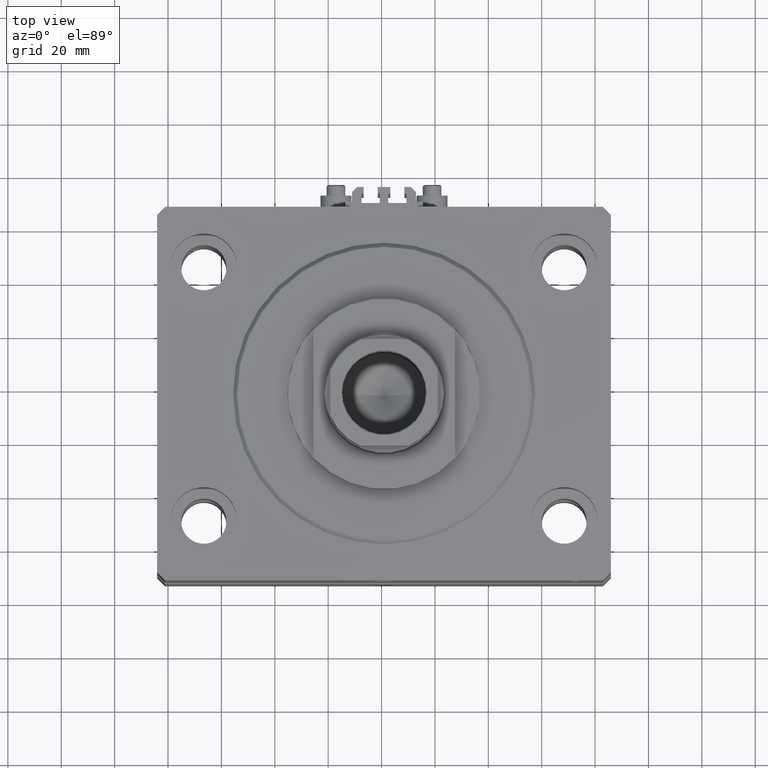
[diagram: clean part render]
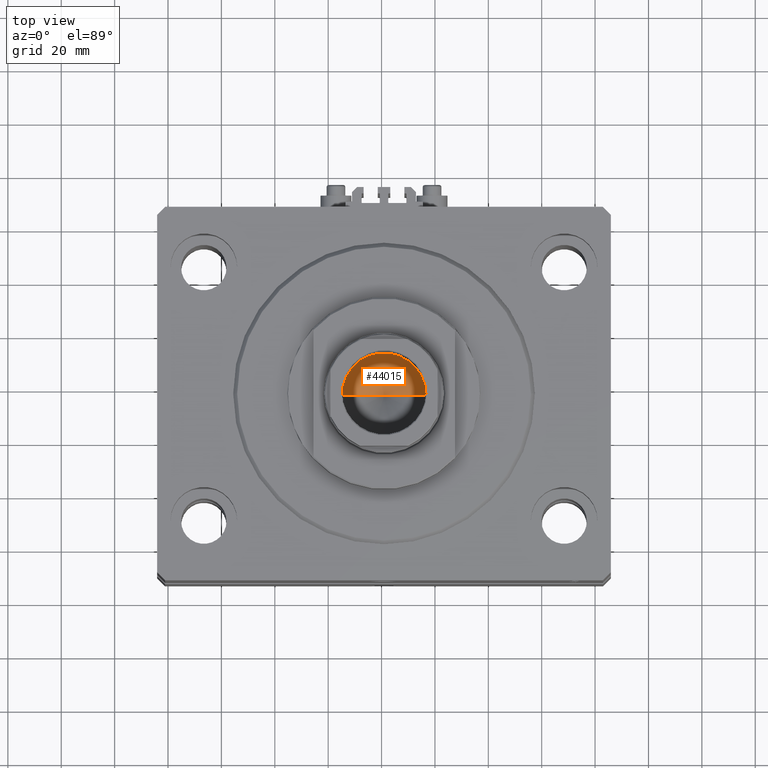
[diagram: same view with one face highlighted and labeled with its STEP entity id]
A machine part, top view. The second image highlights one B-rep face of the part: STEP entity #44015.
In plain terms, the highlighted conical surface has half-angle 59 deg.
Its self-contained STEP definition (entity closure, byte-faithful):
#285 = DIRECTION ( 'NONE',  ( 1.000000000000000000, 0.000000000000000000, 0.000000000000000000 ) ) ;
#1281 = CONICAL_SURFACE ( 'NONE', #6721, 15.74999999999998934, 1.029744258676653645 ) ;
#1960 = DIRECTION ( 'NONE',  ( -0.000000000000000000, -0.000000000000000000, 1.000000000000000000 ) ) ;
#3856 = DIRECTION ( 'NONE',  ( -0.8571673007021118895, 1.049727191138618079E-16, 0.5150380749100549327 ) ) ;
#6721 = AXIS2_PLACEMENT_3D ( 'NONE', #27685, #1960, #35265 ) ;
#6760 = VECTOR ( 'NONE', #3856, 1000.000000000000000 ) ;
#11919 = CARTESIAN_POINT ( 'NONE',  ( -15.74999999999998934, 1.928818708657080161E-15, 71.00000000000001421 ) ) ;
#12754 = FACE_OUTER_BOUND ( 'NONE', #39844, .T. ) ;
#13245 = ORIENTED_EDGE ( 'NONE', *, *, #46464, .T. ) ;
#15342 = EDGE_CURVE ( 'NONE', #45199, #35238, #39161, .T. ) ;
#18560 = LINE ( 'NONE', #37408, #6760 ) ;
#19825 = DIRECTION ( 'NONE',  ( 0.8571673007021118895, 0.000000000000000000, 0.5150380749100549327 ) ) ;
#22414 = VECTOR ( 'NONE', #19825, 1000.000000000000000 ) ;
#23128 = AXIS2_PLACEMENT_3D ( 'NONE', #30165, #44133, #285 ) ;
#27685 = CARTESIAN_POINT ( 'NONE',  ( 0.000000000000000000, 0.000000000000000000, 71.00000000000001421 ) ) ;
#28295 = CARTESIAN_POINT ( 'NONE',  ( 15.74999999999998934, 0.000000000000000000, 71.00000000000001421 ) ) ;
#29249 = CARTESIAN_POINT ( 'NONE',  ( -1.480675244360640996E-14, 0.000000000000000000, 61.53644525031592849 ) ) ;
#30165 = CARTESIAN_POINT ( 'NONE',  ( 0.000000000000000000, 0.000000000000000000, 71.00000000000001421 ) ) ;
#30307 = VERTEX_POINT ( 'NONE', #11919 ) ;
#34511 = CARTESIAN_POINT ( 'NONE',  ( 15.74999999999998934, 0.000000000000000000, 71.00000000000001421 ) ) ;
#35238 = VERTEX_POINT ( 'NONE', #28295 ) ;
#35265 = DIRECTION ( 'NONE',  ( 1.000000000000000000, 0.000000000000000000, 0.000000000000000000 ) ) ;
#37408 = CARTESIAN_POINT ( 'NONE',  ( -15.74999999999998934, 1.928818708657080161E-15, 71.00000000000001421 ) ) ;
#39161 = LINE ( 'NONE', #34511, #22414 ) ;
#39844 = EDGE_LOOP ( 'NONE', ( #42381, #40642, #13245 ) ) ;
#40642 = ORIENTED_EDGE ( 'NONE', *, *, #15342, .T. ) ;
#42381 = ORIENTED_EDGE ( 'NONE', *, *, #48388, .F. ) ;
#44015 = ADVANCED_FACE ( 'NONE', ( #12754 ), #1281, .F. ) ;
#44133 = DIRECTION ( 'NONE',  ( -0.000000000000000000, -0.000000000000000000, 1.000000000000000000 ) ) ;
#44231 = CIRCLE ( 'NONE', #23128, 15.74999999999998934 ) ;
#45199 = VERTEX_POINT ( 'NONE', #29249 ) ;
#46464 = EDGE_CURVE ( 'NONE', #35238, #30307, #44231, .T. ) ;
#48388 = EDGE_CURVE ( 'NONE', #45199, #30307, #18560, .T. ) ;